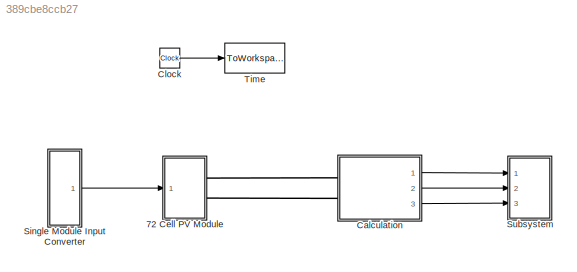
MODEL slx_389cbe8ccb27
KIND model
CONFIG AbsTol = auto
CONFIG EnableMultiTasking = off
CONFIG FixedStep = auto
CONFIG MaxStep = 0.08
CONFIG MinStep = auto
CONFIG RelTol = 1e-3
CONFIG SampleTimeConstraint = Unconstrained
CONFIG Solver = ode15s
CONFIG SolverName = ode15s
CONFIG StartTime = 0.0
CONFIG StopTime = 4
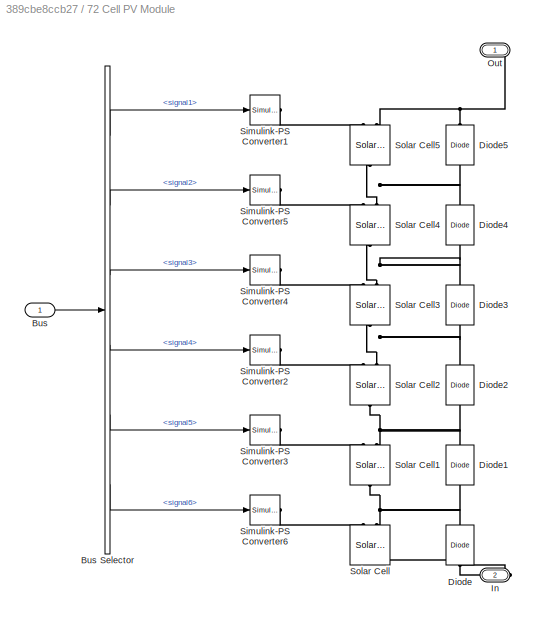
BLOCK [SubSystem] 72 Cell PV Module
  Ports = [1, 0, 0, 0, 0, 0, 2]
  RequestExecContextInheritance = off
  Variant = off
BLOCK [Inport] 72 Cell PV Module/Bus
  IconDisplay = Port number
BLOCK [BusSelector] 72 Cell PV Module/Bus Selector
  OutputAsBus = off
  OutputSignals = signal1,signal2,signal3,signal4,signal5,signal6
  Ports = [1, 6]
BLOCK [Reference] 72 Cell PV Module/Diode  REF=fl_lib/Electrical/Electrical Elements/Diode
  Ports = [0, 0, 0, 0, 0, 1, 1]
  SourceBlock = fl_lib/Electrical/Electrical Elements/Diode
  SourceProductBaseCode = SS
  SourceProductName = Simscape
  SourceType = Diode
BLOCK [Reference] 72 Cell PV Module/Diode1  REF=fl_lib/Electrical/Electrical Elements/Diode
  Ports = [0, 0, 0, 0, 0, 1, 1]
  SourceBlock = fl_lib/Electrical/Electrical Elements/Diode
  SourceProductBaseCode = SS
  SourceProductName = Simscape
  SourceType = Diode
BLOCK [Reference] 72 Cell PV Module/Diode2  REF=fl_lib/Electrical/Electrical Elements/Diode
  Ports = [0, 0, 0, 0, 0, 1, 1]
  SourceBlock = fl_lib/Electrical/Electrical Elements/Diode
  SourceProductBaseCode = SS
  SourceProductName = Simscape
  SourceType = Diode
BLOCK [Reference] 72 Cell PV Module/Diode3  REF=fl_lib/Electrical/Electrical Elements/Diode
  Ports = [0, 0, 0, 0, 0, 1, 1]
  SourceBlock = fl_lib/Electrical/Electrical Elements/Diode
  SourceProductBaseCode = SS
  SourceProductName = Simscape
  SourceType = Diode
BLOCK [Reference] 72 Cell PV Module/Diode4  REF=fl_lib/Electrical/Electrical Elements/Diode
  Ports = [0, 0, 0, 0, 0, 1, 1]
  SourceBlock = fl_lib/Electrical/Electrical Elements/Diode
  SourceProductBaseCode = SS
  SourceProductName = Simscape
  SourceType = Diode
BLOCK [Reference] 72 Cell PV Module/Diode5  REF=fl_lib/Electrical/Electrical Elements/Diode
  Ports = [0, 0, 0, 0, 0, 1, 1]
  SourceBlock = fl_lib/Electrical/Electrical Elements/Diode
  SourceProductBaseCode = SS
  SourceProductName = Simscape
  SourceType = Diode
BLOCK [PMIOPort] 72 Cell PV Module/In
  Port = 2
  Side = Right
BLOCK [PMIOPort] 72 Cell PV Module/Out
  Port = 1
  Side = Right
BLOCK [Reference] 72 Cell PV Module/Simulink-PS Converter1  REF=nesl_utility/Simulink-PS
Converter
  Ports = [1, 0, 0, 0, 0, 0, 1]
  SourceBlock = nesl_utility/Simulink-PS\nConverter
  SourceProductBaseCode = SS
  SourceProductName = Simscape
  SourceType = Simulink-PS\nConverter
BLOCK [Reference] 72 Cell PV Module/Simulink-PS Converter2  REF=nesl_utility/Simulink-PS
Converter
  Ports = [1, 0, 0, 0, 0, 0, 1]
  SourceBlock = nesl_utility/Simulink-PS\nConverter
  SourceProductBaseCode = SS
  SourceProductName = Simscape
  SourceType = Simulink-PS\nConverter
BLOCK [Reference] 72 Cell PV Module/Simulink-PS Converter3  REF=nesl_utility/Simulink-PS
Converter
  Ports = [1, 0, 0, 0, 0, 0, 1]
  SourceBlock = nesl_utility/Simulink-PS\nConverter
  SourceProductBaseCode = SS
  SourceProductName = Simscape
  SourceType = Simulink-PS\nConverter
BLOCK [Reference] 72 Cell PV Module/Simulink-PS Converter4  REF=nesl_utility/Simulink-PS
Converter
  Ports = [1, 0, 0, 0, 0, 0, 1]
  SourceBlock = nesl_utility/Simulink-PS\nConverter
  SourceProductBaseCode = SS
  SourceProductName = Simscape
  SourceType = Simulink-PS\nConverter
BLOCK [Reference] 72 Cell PV Module/Simulink-PS Converter5  REF=nesl_utility/Simulink-PS
Converter
  Ports = [1, 0, 0, 0, 0, 0, 1]
  SourceBlock = nesl_utility/Simulink-PS\nConverter
  SourceProductBaseCode = SS
  SourceProductName = Simscape
  SourceType = Simulink-PS\nConverter
BLOCK [Reference] 72 Cell PV Module/Simulink-PS Converter6  REF=nesl_utility/Simulink-PS
Converter
  Ports = [1, 0, 0, 0, 0, 0, 1]
  SourceBlock = nesl_utility/Simulink-PS\nConverter
  SourceProductBaseCode = SS
  SourceProductName = Simscape
  SourceType = Simulink-PS\nConverter
BLOCK [Reference] 72 Cell PV Module/Solar Cell  REF=elec_lib/Sources/Solar Cell
  Ports = [0, 0, 0, 0, 0, 2, 1]
  SourceBlock = elec_lib/Sources/Solar Cell
  SourceProductBaseCode = SN
  SourceProductName = Simscape Electronics
  SourceType = Solar Cell
BLOCK [Reference] 72 Cell PV Module/Solar Cell1  REF=elec_lib/Sources/Solar Cell
  Ports = [0, 0, 0, 0, 0, 2, 1]
  SourceBlock = elec_lib/Sources/Solar Cell
  SourceProductBaseCode = SN
  SourceProductName = Simscape Electronics
  SourceType = Solar Cell
BLOCK [Reference] 72 Cell PV Module/Solar Cell2  REF=elec_lib/Sources/Solar Cell
  Ports = [0, 0, 0, 0, 0, 2, 1]
  SourceBlock = elec_lib/Sources/Solar Cell
  SourceProductBaseCode = SN
  SourceProductName = Simscape Electronics
  SourceType = Solar Cell
BLOCK [Reference] 72 Cell PV Module/Solar Cell3  REF=elec_lib/Sources/Solar Cell
  Ports = [0, 0, 0, 0, 0, 2, 1]
  SourceBlock = elec_lib/Sources/Solar Cell
  SourceProductBaseCode = SN
  SourceProductName = Simscape Electronics
  SourceType = Solar Cell
BLOCK [Reference] 72 Cell PV Module/Solar Cell4  REF=elec_lib/Sources/Solar Cell
  Ports = [0, 0, 0, 0, 0, 2, 1]
  SourceBlock = elec_lib/Sources/Solar Cell
  SourceProductBaseCode = SN
  SourceProductName = Simscape Electronics
  SourceType = Solar Cell
BLOCK [Reference] 72 Cell PV Module/Solar Cell5  REF=elec_lib/Sources/Solar Cell
  Ports = [0, 0, 0, 0, 0, 2, 1]
  SourceBlock = elec_lib/Sources/Solar Cell
  SourceProductBaseCode = SN
  SourceProductName = Simscape Electronics
  SourceType = Solar Cell
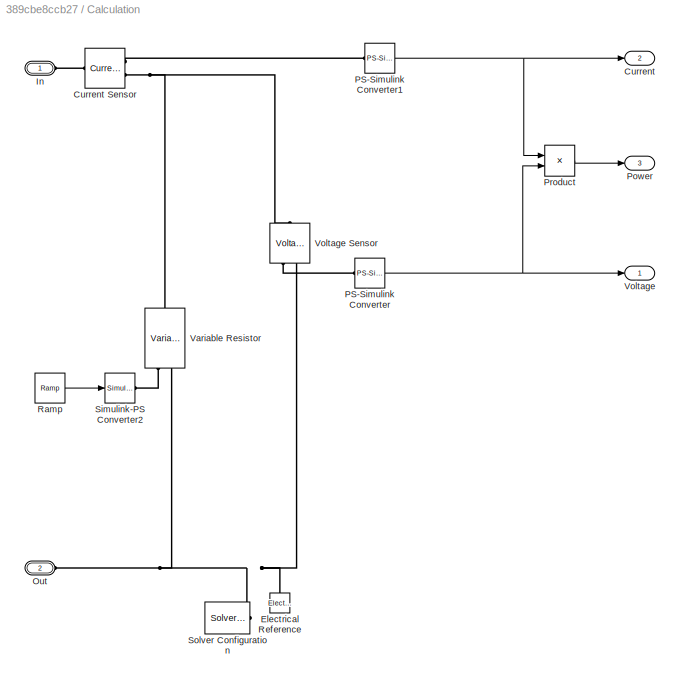
BLOCK [SubSystem] Calculation
  Ports = [0, 3, 0, 0, 0, 2]
  RequestExecContextInheritance = off
  Variant = off
BLOCK [Outport] Calculation/Current
  IconDisplay = Port number
  Port = 2
BLOCK [Reference] Calculation/Current Sensor  REF=fl_lib/Electrical/Electrical Sensors/Current Sensor
  Ports = [0, 0, 0, 0, 0, 1, 2]
  SourceBlock = fl_lib/Electrical/Electrical Sensors/Current Sensor
  SourceProductBaseCode = SS
  SourceProductName = Simscape
  SourceType = Current Sensor
BLOCK [Reference] Calculation/Electrical Reference  REF=fl_lib/Electrical/Electrical Elements/Electrical Reference
  Ports = [0, 0, 0, 0, 0, 1]
  SourceBlock = fl_lib/Electrical/Electrical Elements/Electrical Reference
  SourceProductBaseCode = SS
  SourceProductName = Simscape
  SourceType = Electrical Reference
BLOCK [PMIOPort] Calculation/In
  Port = 1
  Side = Left
BLOCK [PMIOPort] Calculation/Out
  Port = 2
  Side = Left
BLOCK [Reference] Calculation/PS-Simulink Converter  REF=nesl_utility/PS-Simulink
Converter
  Ports = [0, 1, 0, 0, 0, 1]
  SourceBlock = nesl_utility/PS-Simulink\nConverter
  SourceProductBaseCode = SS
  SourceProductName = Simscape
  SourceType = PS-Simulink\nConverter
BLOCK [Reference] Calculation/PS-Simulink Converter1  REF=nesl_utility/PS-Simulink
Converter
  Ports = [0, 1, 0, 0, 0, 1]
  SourceBlock = nesl_utility/PS-Simulink\nConverter
  SourceProductBaseCode = SS
  SourceProductName = Simscape
  SourceType = PS-Simulink\nConverter
BLOCK [Outport] Calculation/Power
  IconDisplay = Port number
  Port = 3
BLOCK [Product] Calculation/Product
  InputSameDT = off
  OutDataTypeStr = Inherit: Inherit via internal rule
  Ports = [2, 1]
  RndMeth = Floor
  SaturateOnIntegerOverflow = off
BLOCK [Reference] Calculation/Ramp  REF=simulink/Sources/Ramp
  Ports = [0, 1]
  SourceBlock = simulink/Sources/Ramp
  SourceProductBaseCode = SL
  SourceProductName = Simulink
  SourceType = Ramp
BLOCK [Reference] Calculation/Simulink-PS Converter2  REF=nesl_utility/Simulink-PS
Converter
  Ports = [1, 0, 0, 0, 0, 0, 1]
  SourceBlock = nesl_utility/Simulink-PS\nConverter
  SourceProductBaseCode = SS
  SourceProductName = Simscape
  SourceType = Simulink-PS\nConverter
BLOCK [Reference] Calculation/Solver Configuration  REF=nesl_utility/Solver
Configuration
  Ports = [0, 0, 0, 0, 0, 0, 1]
  SourceBlock = nesl_utility/Solver\nConfiguration
  SourceProductBaseCode = SS
  SourceProductName = Simscape
  SourceType = Solver\nConfiguration
BLOCK [Reference] Calculation/Variable Resistor  REF=fl_lib/Electrical/Electrical Elements/Variable Resistor
  Ports = [0, 0, 0, 0, 0, 2, 1]
  SourceBlock = fl_lib/Electrical/Electrical Elements/Variable Resistor
  SourceProductBaseCode = SS
  SourceProductName = Simscape
  SourceType = Variable Resistor
BLOCK [Outport] Calculation/Voltage
  IconDisplay = Port number
BLOCK [Reference] Calculation/Voltage Sensor  REF=fl_lib/Electrical/Electrical Sensors/Voltage Sensor
  Ports = [0, 0, 0, 0, 0, 1, 2]
  SourceBlock = fl_lib/Electrical/Electrical Sensors/Voltage Sensor
  SourceProductBaseCode = SS
  SourceProductName = Simscape
  SourceType = Voltage Sensor
BLOCK [Clock] Clock
  Decimation = 5
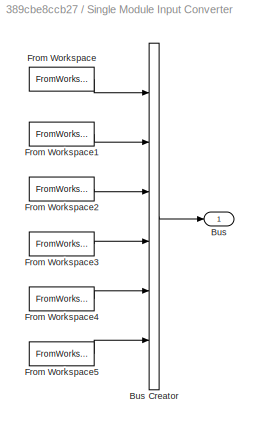
BLOCK [SubSystem] Single Module Input Converter
  Ports = [0, 1]
  RequestExecContextInheritance = off
  Variant = off
BLOCK [Outport] Single Module Input Converter/Bus
  IconDisplay = Port number
BLOCK [BusCreator] Single Module Input Converter/Bus Creator
  DisplayOption = bar
  InheritFromInputs = on
  Inputs = 6
  Ports = [6, 1]
BLOCK [FromWorkspace] Single Module Input Converter/From Workspace
  OutDataTypeStr = double
  SampleTime = 0
  VariableName = a
  ZeroCross = on
BLOCK [FromWorkspace] Single Module Input Converter/From Workspace1
  OutDataTypeStr = double
  SampleTime = 0
  VariableName = b
  ZeroCross = on
BLOCK [FromWorkspace] Single Module Input Converter/From Workspace2
  OutDataTypeStr = double
  SampleTime = 0
  VariableName = c
  ZeroCross = on
BLOCK [FromWorkspace] Single Module Input Converter/From Workspace3
  OutDataTypeStr = double
  SampleTime = 0
  VariableName = d
  ZeroCross = on
BLOCK [FromWorkspace] Single Module Input Converter/From Workspace4
  OutDataTypeStr = double
  SampleTime = 0
  VariableName = e
  ZeroCross = on
BLOCK [FromWorkspace] Single Module Input Converter/From Workspace5
  OutDataTypeStr = double
  SampleTime = 0
  VariableName = f
  ZeroCross = on
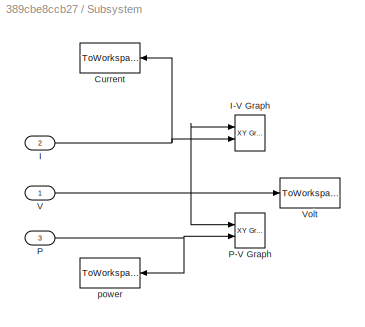
BLOCK [SubSystem] Subsystem
  Ports = [3]
  RequestExecContextInheritance = off
  Variant = off
BLOCK [ToWorkspace] Subsystem/Current
  FixptAsFi = on
  MaxDataPoints = inf
  Ports = [1]
  SampleTime = -1
  Save2DSignal = 2-D array (concatenate along first dimension)
  VariableName = i
BLOCK [Inport] Subsystem/I
  IconDisplay = Port number
  Port = 2
BLOCK [Reference] Subsystem/I-V Graph   REF=simulink/Sinks/XY Graph
  Commented = on
  Ports = [2]
  SourceBlock = simulink/Sinks/XY Graph
  SourceProductBaseCode = SL
  SourceProductName = Simulink
  SourceType = XY scope.
BLOCK [Inport] Subsystem/P
  IconDisplay = Port number
  Port = 3
BLOCK [Reference] Subsystem/P-V Graph  REF=simulink/Sinks/XY Graph
  Commented = on
  Ports = [2]
  SourceBlock = simulink/Sinks/XY Graph
  SourceProductBaseCode = SL
  SourceProductName = Simulink
  SourceType = XY scope.
BLOCK [Inport] Subsystem/V
  IconDisplay = Port number
BLOCK [ToWorkspace] Subsystem/Volt
  FixptAsFi = on
  MaxDataPoints = inf
  Ports = [1]
  SampleTime = -1
  Save2DSignal = 2-D array (concatenate along first dimension)
  VariableName = v
BLOCK [ToWorkspace] Subsystem/power
  FixptAsFi = on
  MaxDataPoints = inf
  Ports = [1]
  SampleTime = -1
  Save2DSignal = 2-D array (concatenate along first dimension)
  VariableName = p
BLOCK [ToWorkspace] Time 
  FixptAsFi = on
  MaxDataPoints = inf
  Ports = [1]
  SampleTime = -1
  Save2DSignal = 3-D array (concatenate along third dimension)
  SaveFormat = Timeseries
  VariableName = t
LINE 72 Cell PV Module/Bus Selector:1 -> 72 Cell PV Module/Simulink-PS Converter1:1
LINE 72 Cell PV Module/Bus Selector:2 -> 72 Cell PV Module/Simulink-PS Converter5:1
LINE 72 Cell PV Module/Bus Selector:3 -> 72 Cell PV Module/Simulink-PS Converter4:1
LINE 72 Cell PV Module/Bus Selector:4 -> 72 Cell PV Module/Simulink-PS Converter2:1
LINE 72 Cell PV Module/Bus Selector:5 -> 72 Cell PV Module/Simulink-PS Converter3:1
LINE 72 Cell PV Module/Bus Selector:6 -> 72 Cell PV Module/Simulink-PS Converter6:1
LINE 72 Cell PV Module/Bus:1 -> 72 Cell PV Module/Bus Selector:1
NET Calculation/PS-Simulink Converter1:1 -> Calculation/Current:1, Calculation/Product:1
NET Calculation/PS-Simulink Converter:1 -> Calculation/Product:2, Calculation/Voltage:1
LINE Calculation/Product:1 -> Calculation/Power:1
LINE Calculation/Ramp:1 -> Calculation/Simulink-PS Converter2:1
LINE Calculation:1 -> Subsystem:1
LINE Calculation:2 -> Subsystem:2
LINE Calculation:3 -> Subsystem:3
LINE Clock:1 -> Time :1
LINE Single Module Input Converter/Bus Creator:1 -> Single Module Input Converter/Bus:1
LINE Single Module Input Converter/From Workspace1:1 -> Single Module Input Converter/Bus Creator:2
LINE Single Module Input Converter/From Workspace2:1 -> Single Module Input Converter/Bus Creator:3
LINE Single Module Input Converter/From Workspace3:1 -> Single Module Input Converter/Bus Creator:4
LINE Single Module Input Converter/From Workspace4:1 -> Single Module Input Converter/Bus Creator:5
LINE Single Module Input Converter/From Workspace5:1 -> Single Module Input Converter/Bus Creator:6
LINE Single Module Input Converter/From Workspace:1 -> Single Module Input Converter/Bus Creator:1
LINE Single Module Input Converter:1 -> 72 Cell PV Module:1
NET Subsystem/I:1 -> Subsystem/Current:1, Subsystem/I-V Graph :2
NET Subsystem/P:1 -> Subsystem/P-V Graph:2, Subsystem/power:1
NET Subsystem/V:1 -> Subsystem/I-V Graph :1, Subsystem/P-V Graph:1, Subsystem/Volt:1
PNET net1: 72 Cell PV Module/Diode1:LConn1 -- 72 Cell PV Module/Diode:RConn1 -- 72 Cell PV Module/Solar Cell1:RConn1 -- 72 Cell PV Module/Solar Cell:LConn2
PNET net2: 72 Cell PV Module/Diode1:RConn1 -- 72 Cell PV Module/Diode2:LConn1 -- 72 Cell PV Module/Solar Cell1:LConn2 -- 72 Cell PV Module/Solar Cell2:RConn1
PNET net3: 72 Cell PV Module/Diode2:RConn1 -- 72 Cell PV Module/Diode3:LConn1 -- 72 Cell PV Module/Solar Cell2:LConn2 -- 72 Cell PV Module/Solar Cell3:RConn1
PNET net4: 72 Cell PV Module/Diode3:RConn1 -- 72 Cell PV Module/Diode4:LConn1 -- 72 Cell PV Module/Solar Cell3:LConn2 -- 72 Cell PV Module/Solar Cell4:RConn1
PNET net5: 72 Cell PV Module/Diode4:RConn1 -- 72 Cell PV Module/Diode5:LConn1 -- 72 Cell PV Module/Solar Cell4:LConn2 -- 72 Cell PV Module/Solar Cell5:RConn1
PNET net6: 72 Cell PV Module/Diode5:RConn1 -- 72 Cell PV Module/Out:RConn1 -- 72 Cell PV Module/Solar Cell5:LConn2
PNET net7: 72 Cell PV Module/Diode:LConn1 -- 72 Cell PV Module/In:RConn1 -- 72 Cell PV Module/Solar Cell:RConn1
PLINE 72 Cell PV Module/Simulink-PS Converter1:RConn1 -- 72 Cell PV Module/Solar Cell5:LConn1
PLINE 72 Cell PV Module/Simulink-PS Converter2:RConn1 -- 72 Cell PV Module/Solar Cell2:LConn1
PLINE 72 Cell PV Module/Simulink-PS Converter3:RConn1 -- 72 Cell PV Module/Solar Cell1:LConn1
PLINE 72 Cell PV Module/Simulink-PS Converter4:RConn1 -- 72 Cell PV Module/Solar Cell3:LConn1
PLINE 72 Cell PV Module/Simulink-PS Converter5:RConn1 -- 72 Cell PV Module/Solar Cell4:LConn1
PLINE 72 Cell PV Module/Simulink-PS Converter6:RConn1 -- 72 Cell PV Module/Solar Cell:LConn1
PLINE 72 Cell PV Module:RConn1 -- Calculation:LConn1
PLINE 72 Cell PV Module:RConn2 -- Calculation:LConn2
PLINE Calculation/Current Sensor:LConn1 -- Calculation/In:RConn1
PLINE Calculation/Current Sensor:RConn1 -- Calculation/PS-Simulink Converter1:LConn1
PNET net8: Calculation/Current Sensor:RConn2 -- Calculation/Variable Resistor:RConn1 -- Calculation/Voltage Sensor:LConn1
PNET net9: Calculation/Electrical Reference:LConn1 -- Calculation/Out:RConn1 -- Calculation/Solver Configuration:RConn1 -- Calculation/Variable Resistor:LConn2 -- Calculation/Voltage Sensor:RConn2
PLINE Calculation/PS-Simulink Converter:LConn1 -- Calculation/Voltage Sensor:RConn1
PLINE Calculation/Simulink-PS Converter2:RConn1 -- Calculation/Variable Resistor:LConn1
note: NET lines group one-source signal fan-out (src -> all destinations, sorted); 1:1 wires keep LINE; PNET lines group multi-terminal physical nets as a canonical sorted terminal list (undirected conserving connections); 2-terminal nets keep the pairwise PLINE form
